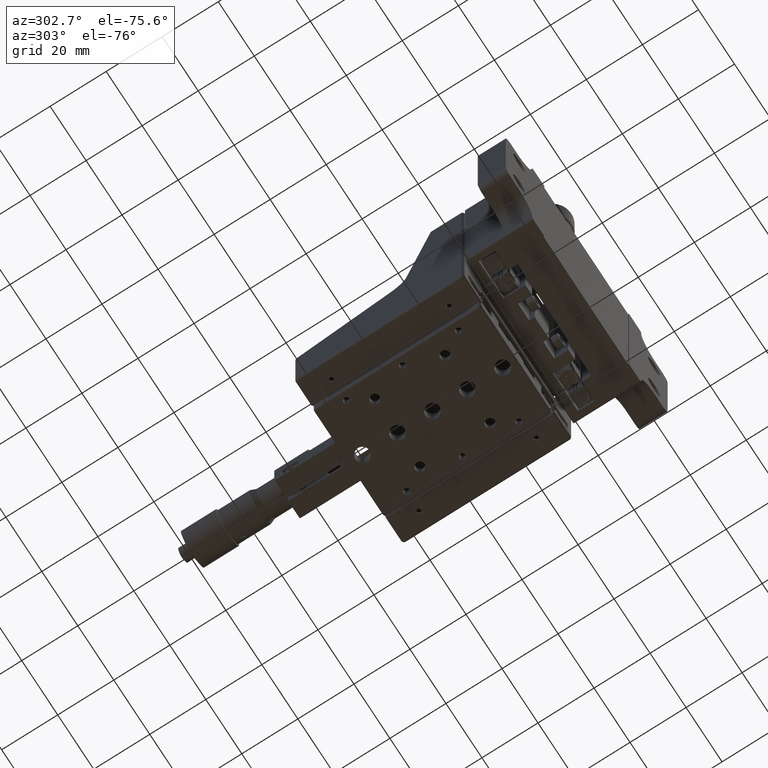
[diagram: clean part render]
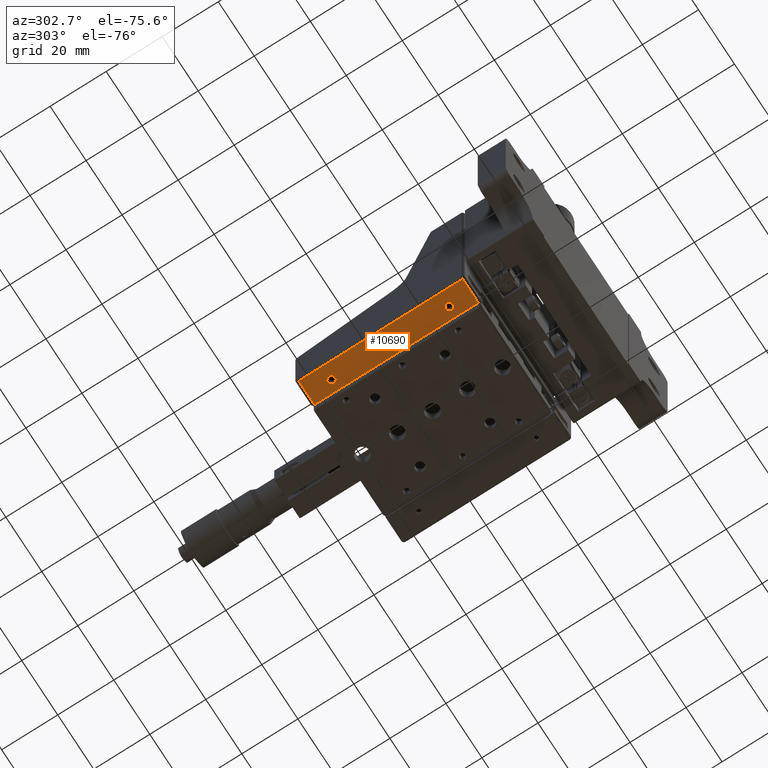
[diagram: same view with one face highlighted and labeled with its STEP entity id]
A machine part, auxiliary view. The second image highlights one B-rep face of the part: STEP entity #10690.
In plain terms, the highlighted planar face has unit normal (0, 0, -1).
Its self-contained STEP definition (entity closure, byte-faithful):
#398 = CARTESIAN_POINT ( 'NONE',  ( -26.95935921224443987, 63.88479336248714446, -42.35053537573528359 ) ) ;
#484 = DIRECTION ( 'NONE',  ( -0.000000000000000000, 1.000000000000000000, -0.000000000000000000 ) ) ;
#585 = EDGE_CURVE ( 'NONE', #24801, #11058, #36288, .T. ) ;
#718 = LINE ( 'NONE', #22217, #1667 ) ;
#774 = CIRCLE ( 'NONE', #25427, 1.250000000000001110 ) ;
#1034 = CARTESIAN_POINT ( 'NONE',  ( -26.95935921224443987, 5.384793362487161339, -42.35053537573528359 ) ) ;
#1150 = CARTESIAN_POINT ( 'NONE',  ( -20.70935921224443987, 55.38479336248715157, -42.35053537573528359 ) ) ;
#1667 = VECTOR ( 'NONE', #484, 1000.000000000000000 ) ;
#1693 = FACE_BOUND ( 'NONE', #6752, .T. ) ;
#1873 = CARTESIAN_POINT ( 'NONE',  ( -27.95935921224443987, 63.88479336248714446, -42.35053537573528359 ) ) ;
#2153 = CARTESIAN_POINT ( 'NONE',  ( -21.95935921224444343, 55.38479336248715157, -42.35053537573528359 ) ) ;
#2217 = VECTOR ( 'NONE', #11472, 1000.000000000000000 ) ;
#3694 = VECTOR ( 'NONE', #14680, 1000.000000000000000 ) ;
#4833 = DIRECTION ( 'NONE',  ( -0.000000000000000000, -0.000000000000000000, -1.000000000000000000 ) ) ;
#6122 = VERTEX_POINT ( 'NONE', #9401 ) ;
#6203 = EDGE_LOOP ( 'NONE', ( #31793, #8423, #34895, #26382 ) ) ;
#6752 = EDGE_LOOP ( 'NONE', ( #17405, #28964 ) ) ;
#7209 = LINE ( 'NONE', #398, #3694 ) ;
#7261 = EDGE_CURVE ( 'NONE', #18306, #45637, #718, .T. ) ;
#7499 = VERTEX_POINT ( 'NONE', #20787 ) ;
#8423 = ORIENTED_EDGE ( 'NONE', *, *, #29209, .T. ) ;
#8668 = AXIS2_PLACEMENT_3D ( 'NONE', #40764, #20387, #12935 ) ;
#8905 = LINE ( 'NONE', #1873, #37786 ) ;
#9401 = CARTESIAN_POINT ( 'NONE',  ( -26.95935921224443987, 63.88479336248714446, -42.35053537573528359 ) ) ;
#10690 = ADVANCED_FACE ( 'NONE', ( #1693, #23435, #22967 ), #23668, .T. ) ;
#10997 = DIRECTION ( 'NONE',  ( -0.000000000000000000, -0.000000000000000000, -1.000000000000000000 ) ) ;
#11044 = EDGE_CURVE ( 'NONE', #6122, #45637, #8905, .T. ) ;
#11058 = VERTEX_POINT ( 'NONE', #37447 ) ;
#11289 = EDGE_CURVE ( 'NONE', #32980, #7499, #20686, .T. ) ;
#11472 = DIRECTION ( 'NONE',  ( 1.000000000000000000, 0.000000000000000000, 0.000000000000000000 ) ) ;
#12935 = DIRECTION ( 'NONE',  ( -1.000000000000000000, 0.000000000000000000, -0.000000000000000000 ) ) ;
#13101 = AXIS2_PLACEMENT_3D ( 'NONE', #2153, #28325, #38190 ) ;
#14651 = ORIENTED_EDGE ( 'NONE', *, *, #16714, .F. ) ;
#14680 = DIRECTION ( 'NONE',  ( -0.000000000000000000, 1.000000000000000000, 0.000000000000000000 ) ) ;
#15594 = CARTESIAN_POINT ( 'NONE',  ( -21.95935921224444343, 13.38479336248715512, -42.35053537573528359 ) ) ;
#15828 = DIRECTION ( 'NONE',  ( -1.000000000000000000, 0.000000000000000000, 0.000000000000000000 ) ) ;
#16714 = EDGE_CURVE ( 'NONE', #7499, #32980, #26484, .T. ) ;
#17405 = ORIENTED_EDGE ( 'NONE', *, *, #30122, .F. ) ;
#17918 = CARTESIAN_POINT ( 'NONE',  ( -21.95935921224444343, 13.38479336248715512, -42.35053537573528359 ) ) ;
#18306 = VERTEX_POINT ( 'NONE', #20689 ) ;
#20387 = DIRECTION ( 'NONE',  ( 0.000000000000000000, 0.000000000000000000, -1.000000000000000000 ) ) ;
#20686 = CIRCLE ( 'NONE', #28917, 1.250000000000001110 ) ;
#20689 = CARTESIAN_POINT ( 'NONE',  ( -18.20935921224444698, 5.384793362487154234, -42.35053537573528359 ) ) ;
#20787 = CARTESIAN_POINT ( 'NONE',  ( -23.20935921224444343, 55.38479336248715157, -42.35053537573528359 ) ) ;
#21728 = DIRECTION ( 'NONE',  ( -1.000000000000000000, 0.000000000000000000, 0.000000000000000000 ) ) ;
#21918 = EDGE_LOOP ( 'NONE', ( #14651, #40211 ) ) ;
#22081 = AXIS2_PLACEMENT_3D ( 'NONE', #17918, #42949, #25632 ) ;
#22217 = CARTESIAN_POINT ( 'NONE',  ( -18.20935921224444698, 4.384793362487154234, -42.35053537573528359 ) ) ;
#22967 = FACE_OUTER_BOUND ( 'NONE', #6203, .T. ) ;
#23435 = FACE_BOUND ( 'NONE', #21918, .T. ) ;
#23668 = PLANE ( 'NONE',  #8668 ) ;
#24602 = CARTESIAN_POINT ( 'NONE',  ( -20.70935921224443987, 13.38479336248715512, -42.35053537573528359 ) ) ;
#24801 = VERTEX_POINT ( 'NONE', #24602 ) ;
#25427 = AXIS2_PLACEMENT_3D ( 'NONE', #15594, #4833, #15828 ) ;
#25632 = DIRECTION ( 'NONE',  ( -1.000000000000000000, 0.000000000000000000, 0.000000000000000000 ) ) ;
#25926 = CARTESIAN_POINT ( 'NONE',  ( -21.95935921224444343, 55.38479336248715157, -42.35053537573528359 ) ) ;
#26382 = ORIENTED_EDGE ( 'NONE', *, *, #7261, .F. ) ;
#26484 = CIRCLE ( 'NONE', #13101, 1.250000000000001110 ) ;
#27276 = EDGE_CURVE ( 'NONE', #30451, #18306, #39543, .T. ) ;
#28325 = DIRECTION ( 'NONE',  ( -0.000000000000000000, -0.000000000000000000, -1.000000000000000000 ) ) ;
#28917 = AXIS2_PLACEMENT_3D ( 'NONE', #25926, #10997, #21728 ) ;
#28964 = ORIENTED_EDGE ( 'NONE', *, *, #585, .F. ) ;
#29209 = EDGE_CURVE ( 'NONE', #30451, #6122, #7209, .T. ) ;
#30122 = EDGE_CURVE ( 'NONE', #11058, #24801, #774, .T. ) ;
#30451 = VERTEX_POINT ( 'NONE', #1034 ) ;
#30835 = CARTESIAN_POINT ( 'NONE',  ( -18.20935921224444698, 63.88479336248714446, -42.35053537573528359 ) ) ;
#30868 = DIRECTION ( 'NONE',  ( 1.000000000000000000, 0.000000000000000000, 0.000000000000000000 ) ) ;
#31793 = ORIENTED_EDGE ( 'NONE', *, *, #27276, .F. ) ;
#32980 = VERTEX_POINT ( 'NONE', #1150 ) ;
#34895 = ORIENTED_EDGE ( 'NONE', *, *, #11044, .T. ) ;
#36288 = CIRCLE ( 'NONE', #22081, 1.250000000000001110 ) ;
#37447 = CARTESIAN_POINT ( 'NONE',  ( -23.20935921224444343, 13.38479336248715512, -42.35053537573528359 ) ) ;
#37786 = VECTOR ( 'NONE', #30868, 1000.000000000000000 ) ;
#38190 = DIRECTION ( 'NONE',  ( -1.000000000000000000, 0.000000000000000000, 0.000000000000000000 ) ) ;
#39317 = CARTESIAN_POINT ( 'NONE',  ( -27.95935921224443987, 5.384793362487161339, -42.35053537573528359 ) ) ;
#39543 = LINE ( 'NONE', #39317, #2217 ) ;
#40211 = ORIENTED_EDGE ( 'NONE', *, *, #11289, .F. ) ;
#40764 = CARTESIAN_POINT ( 'NONE',  ( -27.95935921224443987, 5.384793362487161339, -42.35053537573528359 ) ) ;
#42949 = DIRECTION ( 'NONE',  ( -0.000000000000000000, -0.000000000000000000, -1.000000000000000000 ) ) ;
#45637 = VERTEX_POINT ( 'NONE', #30835 ) ;